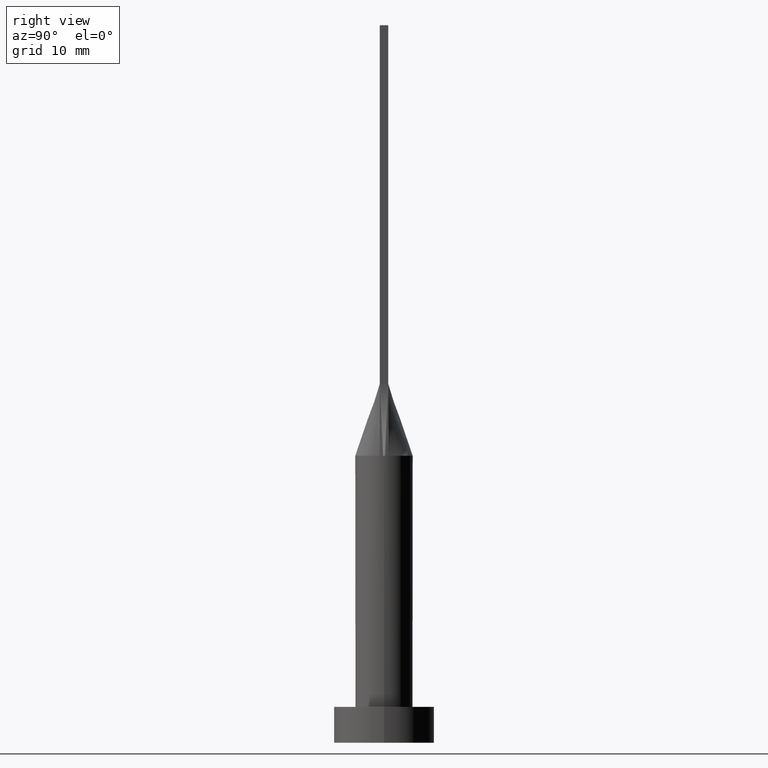
[diagram: clean part render]
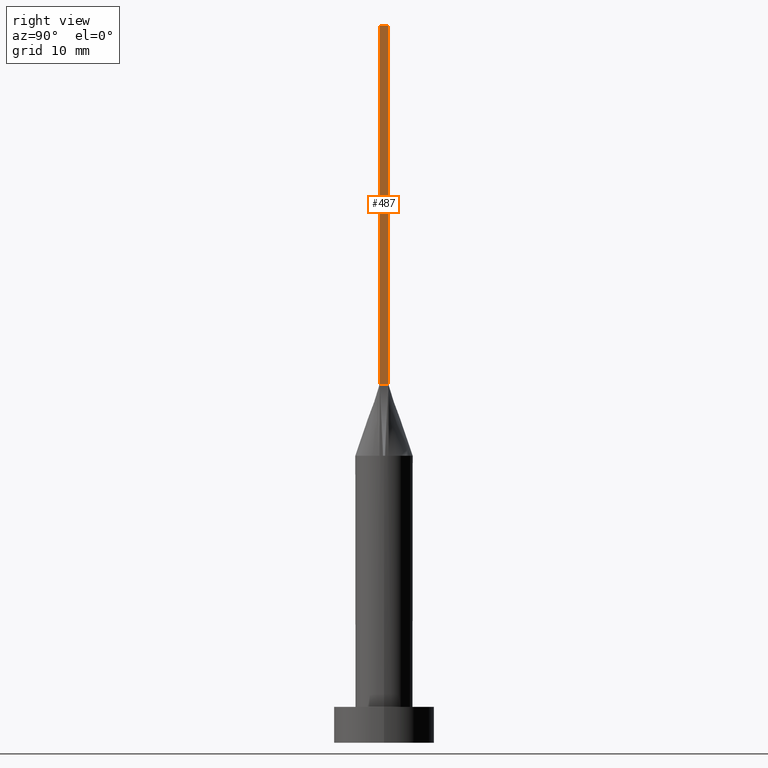
[diagram: same view with one face highlighted and labeled with its STEP entity id]
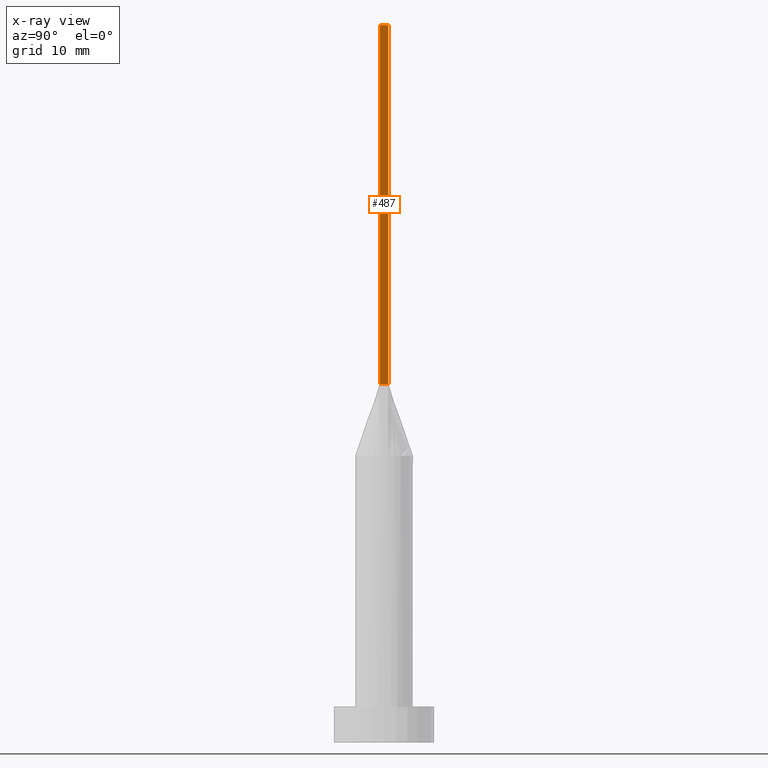
[diagram: x-ray of the same camera — body ghosted, the highlighted face saturated]
A machine part, right view. The second image highlights one B-rep face of the part: STEP entity #487.
The next image is the same camera in x-ray: the body ghosted, the highlighted face saturated — about 0% of this face is hidden behind the body in this view.
In plain terms, the highlighted planar face has unit normal (-1, 0, 0).
Its self-contained STEP definition (entity closure, byte-faithful):
#10 = EDGE_LOOP ( 'NONE', ( #465, #467, #66, #569 ) ) ;
#17 = FACE_OUTER_BOUND ( 'NONE', #10, .T. ) ;
#36 = CARTESIAN_POINT ( 'NONE',  ( 3.750000000000000000, 0.6000000000000001998, 100.0000000000000000 ) ) ;
#38 = VERTEX_POINT ( 'NONE', #346 ) ;
#40 = CARTESIAN_POINT ( 'NONE',  ( 3.750000000000000000, 0.6000000000000001998, 100.0000000000000000 ) ) ;
#57 = VERTEX_POINT ( 'NONE', #482 ) ;
#66 = ORIENTED_EDGE ( 'NONE', *, *, #365, .F. ) ;
#74 = EDGE_CURVE ( 'NONE', #38, #531, #399, .T. ) ;
#112 = VECTOR ( 'NONE', #153, 1000.000000000000000 ) ;
#118 = EDGE_CURVE ( 'NONE', #450, #57, #257, .T. ) ;
#143 = DIRECTION ( 'NONE',  ( -1.000000000000000000, 0.000000000000000000, 0.000000000000000000 ) ) ;
#148 = CARTESIAN_POINT ( 'NONE',  ( 3.750000000000000000, -0.5999999999999997558, 100.0000000000000000 ) ) ;
#153 = DIRECTION ( 'NONE',  ( 0.000000000000000000, 1.000000000000000000, 0.000000000000000000 ) ) ;
#192 = CARTESIAN_POINT ( 'NONE',  ( 3.750000000000000000, -0.5999999999999997558, 100.0000000000000000 ) ) ;
#196 = LINE ( 'NONE', #148, #112 ) ;
#212 = DIRECTION ( 'NONE',  ( -0.000000000000000000, 1.000000000000000000, -0.000000000000000000 ) ) ;
#224 = VECTOR ( 'NONE', #439, 1000.000000000000000 ) ;
#246 = VECTOR ( 'NONE', #212, 1000.000000000000000 ) ;
#257 = LINE ( 'NONE', #36, #549 ) ;
#264 = DIRECTION ( 'NONE',  ( -0.000000000000000000, -0.000000000000000000, -1.000000000000000000 ) ) ;
#346 = CARTESIAN_POINT ( 'NONE',  ( 3.750000000000000000, -0.5999999999999997558, 100.0000000000000000 ) ) ;
#365 = EDGE_CURVE ( 'NONE', #38, #450, #196, .T. ) ;
#379 = PLANE ( 'NONE',  #560 ) ;
#392 = CARTESIAN_POINT ( 'NONE',  ( 3.750000000000000000, -0.5999999999999997558, 100.0000000000000000 ) ) ;
#399 = LINE ( 'NONE', #392, #224 ) ;
#429 = EDGE_CURVE ( 'NONE', #531, #57, #478, .T. ) ;
#439 = DIRECTION ( 'NONE',  ( -0.000000000000000000, -0.000000000000000000, -1.000000000000000000 ) ) ;
#450 = VERTEX_POINT ( 'NONE', #40 ) ;
#465 = ORIENTED_EDGE ( 'NONE', *, *, #429, .T. ) ;
#467 = ORIENTED_EDGE ( 'NONE', *, *, #118, .F. ) ;
#478 = LINE ( 'NONE', #564, #246 ) ;
#482 = CARTESIAN_POINT ( 'NONE',  ( 3.750000000000000000, 0.6000000000000001998, 50.00000000000000000 ) ) ;
#486 = CARTESIAN_POINT ( 'NONE',  ( 3.750000000000000000, -0.5999999999999997558, 50.00000000000000000 ) ) ;
#487 = ADVANCED_FACE ( 'NONE', ( #17 ), #379, .F. ) ;
#531 = VERTEX_POINT ( 'NONE', #486 ) ;
#549 = VECTOR ( 'NONE', #264, 1000.000000000000000 ) ;
#557 = DIRECTION ( 'NONE',  ( 0.000000000000000000, 0.000000000000000000, 1.000000000000000000 ) ) ;
#560 = AXIS2_PLACEMENT_3D ( 'NONE', #192, #143, #557 ) ;
#564 = CARTESIAN_POINT ( 'NONE',  ( 3.750000000000000000, 0.6000000000000001998, 50.00000000000000000 ) ) ;
#569 = ORIENTED_EDGE ( 'NONE', *, *, #74, .T. ) ;